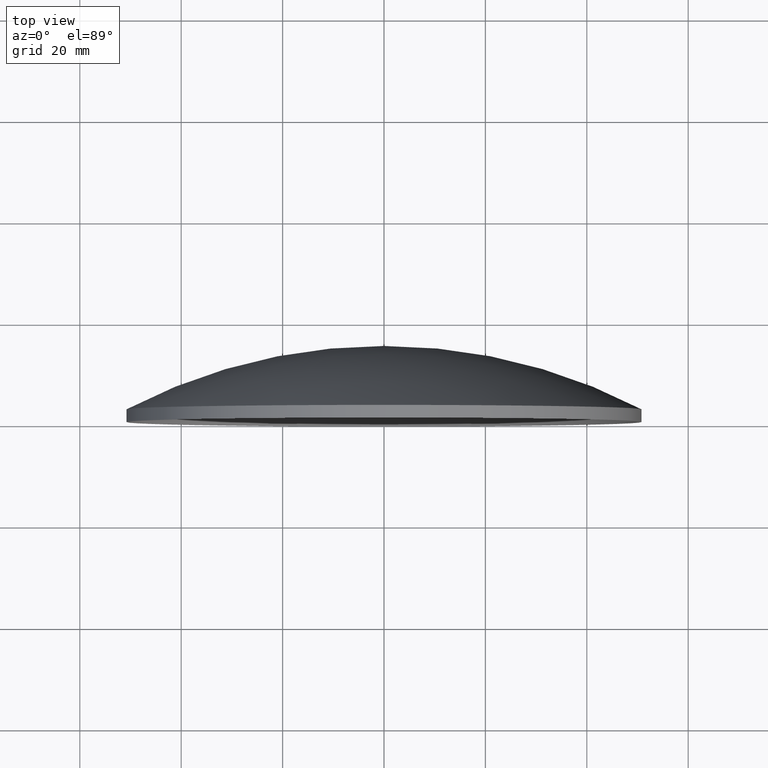
[diagram: clean part render]
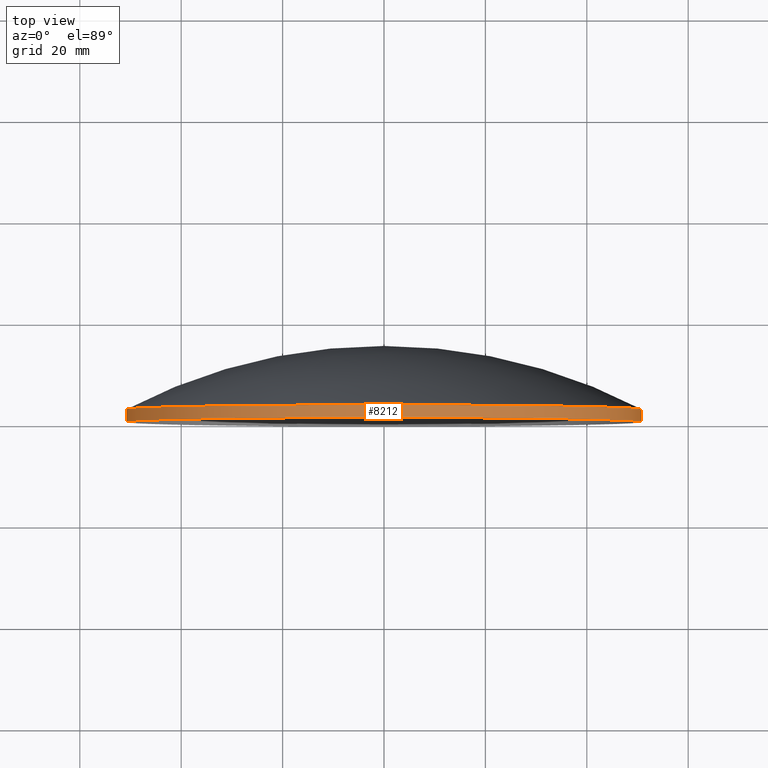
[diagram: same view with one face highlighted and labeled with its STEP entity id]
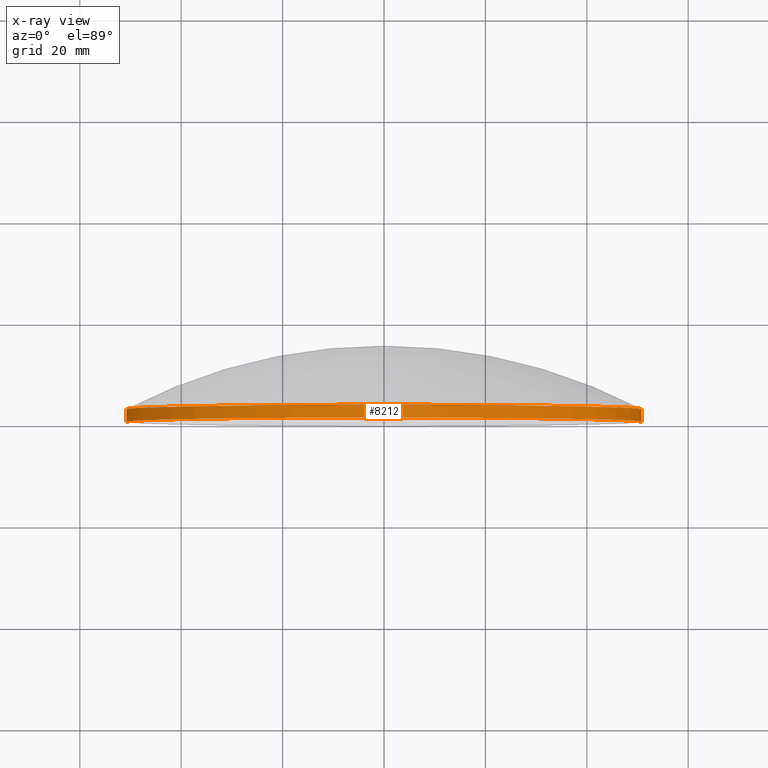
[diagram: x-ray of the same camera — body ghosted, the highlighted face saturated]
A machine part, top view. The second image highlights one B-rep face of the part: STEP entity #8212.
The next image is the same camera in x-ray: the body ghosted, the highlighted face saturated — about 0% of this face is hidden behind the body in this view.
In plain terms, the highlighted cylindrical surface (partial cylindrical patch) has radius 50.8 mm, axis along (-0, -1, -0).
Its self-contained STEP definition (entity closure, byte-faithful):
#16 = EDGE_CURVE ( 'NONE', #6951, #8448, #4624, .T. ) ;
#723 = CARTESIAN_POINT ( 'NONE',  ( 50.80000000000001100, 2.499999999999988000, 0.0000000000000000000 ) ) ;
#796 = ORIENTED_EDGE ( 'NONE', *, *, #5845, .F. ) ;
#1829 = DIRECTION ( 'NONE',  ( -9.500868650831540200E-015, -1.000000000000000000, -0.0000000000000000000 ) ) ;
#2001 = DIRECTION ( 'NONE',  ( -9.500868650831540200E-015, -1.000000000000000000, -0.0000000000000000000 ) ) ;
#2220 = DIRECTION ( 'NONE',  ( 1.000000000000000000, -9.500868650831538600E-015, 0.0000000000000000000 ) ) ;
#2638 = VECTOR ( 'NONE', #2001, 1000.000000000000000 ) ;
#2651 = VECTOR ( 'NONE', #7677, 1000.000000000000000 ) ;
#3257 = CARTESIAN_POINT ( 'NONE',  ( -50.80000000000020300, 2.500000000000953500, 6.221205739668568700E-015 ) ) ;
#3343 = LINE ( 'NONE', #4537, #2638 ) ;
#3448 = ORIENTED_EDGE ( 'NONE', *, *, #16, .F. ) ;
#3457 = FACE_OUTER_BOUND ( 'NONE', #10756, .T. ) ;
#3649 = CARTESIAN_POINT ( 'NONE',  ( -9.500868650831084200E-014, 2.500000000000470700, 0.0000000000000000000 ) ) ;
#3697 = CARTESIAN_POINT ( 'NONE',  ( 0.0000000000000000000, 12.49999999999999100, 0.0000000000000000000 ) ) ;
#4054 = CARTESIAN_POINT ( 'NONE',  ( -50.80000000000023900, 9.666319772597724300E-013, 6.221205739668571900E-015 ) ) ;
#4434 = EDGE_CURVE ( 'NONE', #10898, #6805, #7271, .T. ) ;
#4537 = CARTESIAN_POINT ( 'NONE',  ( 50.80000000000011800, 12.49999999999950800, 0.0000000000000000000 ) ) ;
#4581 = DIRECTION ( 'NONE',  ( -9.500868650831540200E-015, -1.000000000000000000, -0.0000000000000000000 ) ) ;
#4624 = CIRCLE ( 'NONE', #7684, 50.80000000000012500 ) ;
#4645 = EDGE_CURVE ( 'NONE', #6805, #8448, #5434, .T. ) ;
#5434 = LINE ( 'NONE', #6750, #2651 ) ;
#5440 = CARTESIAN_POINT ( 'NONE',  ( 50.80000000000000400, 1.343722335285802000E-015, 0.0000000000000000000 ) ) ;
#5697 = ORIENTED_EDGE ( 'NONE', *, *, #4645, .T. ) ;
#5787 = DIRECTION ( 'NONE',  ( -9.500868650831540200E-015, -1.000000000000000000, -0.0000000000000000000 ) ) ;
#5845 = EDGE_CURVE ( 'NONE', #10898, #6951, #3343, .T. ) ;
#6248 = CYLINDRICAL_SURFACE ( 'NONE', #6695, 50.80000000000011800 ) ;
#6695 = AXIS2_PLACEMENT_3D ( 'NONE', #3697, #4581, #8238 ) ;
#6750 = CARTESIAN_POINT ( 'NONE',  ( -50.80000000000011800, 12.50000000000047300, 6.221205739668568700E-015 ) ) ;
#6805 = VERTEX_POINT ( 'NONE', #3257 ) ;
#6951 = VERTEX_POINT ( 'NONE', #5440 ) ;
#7271 = CIRCLE ( 'NONE', #8453, 50.80000000000011100 ) ;
#7677 = DIRECTION ( 'NONE',  ( -9.500868650831540200E-015, -1.000000000000000000, -0.0000000000000000000 ) ) ;
#7684 = AXIS2_PLACEMENT_3D ( 'NONE', #9279, #5787, #2220 ) ;
#8072 = ORIENTED_EDGE ( 'NONE', *, *, #4434, .T. ) ;
#8212 = ADVANCED_FACE ( 'NONE', ( #3457 ), #6248, .T. ) ;
#8238 = DIRECTION ( 'NONE',  ( 1.000000000000000000, -9.493171777983292200E-015, 0.0000000000000000000 ) ) ;
#8448 = VERTEX_POINT ( 'NONE', #4054 ) ;
#8453 = AXIS2_PLACEMENT_3D ( 'NONE', #3649, #1829, #9968 ) ;
#9279 = CARTESIAN_POINT ( 'NONE',  ( -1.187608581353895600E-013, 4.839878497975291800E-013, 0.0000000000000000000 ) ) ;
#9968 = DIRECTION ( 'NONE',  ( 1.000000000000000000, -9.501708802963493800E-015, 0.0000000000000000000 ) ) ;
#10756 = EDGE_LOOP ( 'NONE', ( #8072, #5697, #3448, #796 ) ) ;
#10898 = VERTEX_POINT ( 'NONE', #723 ) ;